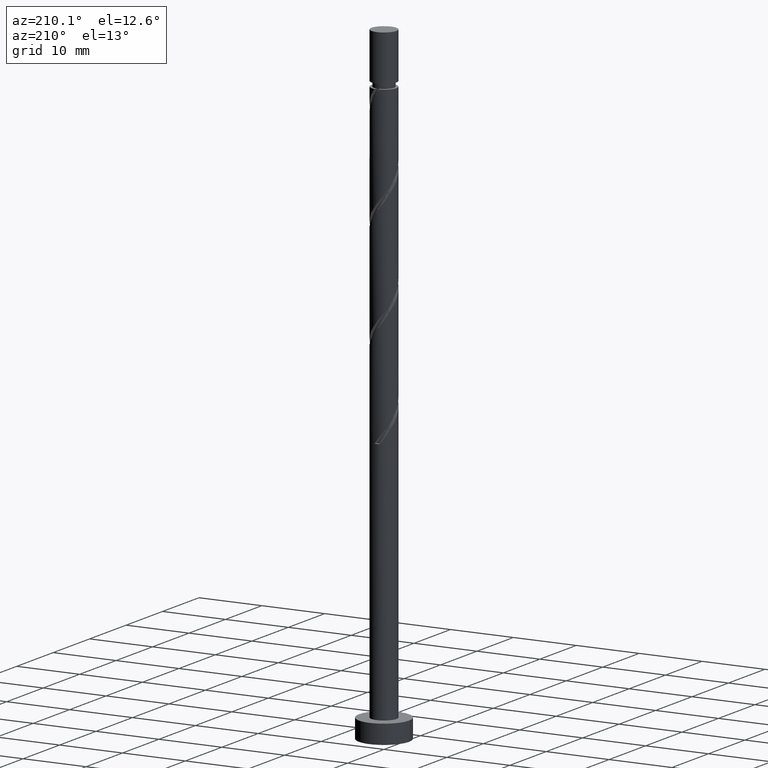
[diagram: clean part render]
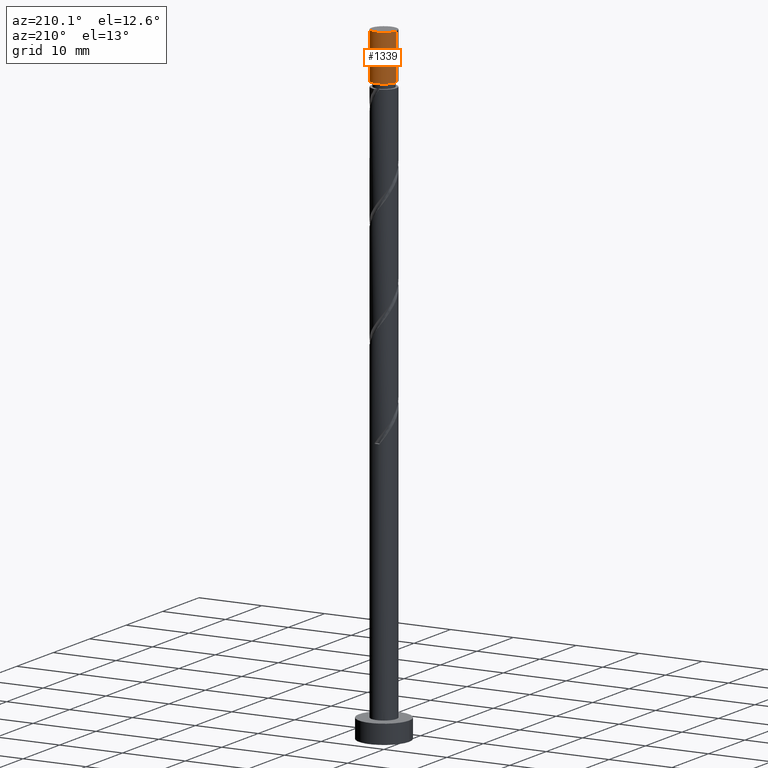
[diagram: same view with one face highlighted and labeled with its STEP entity id]
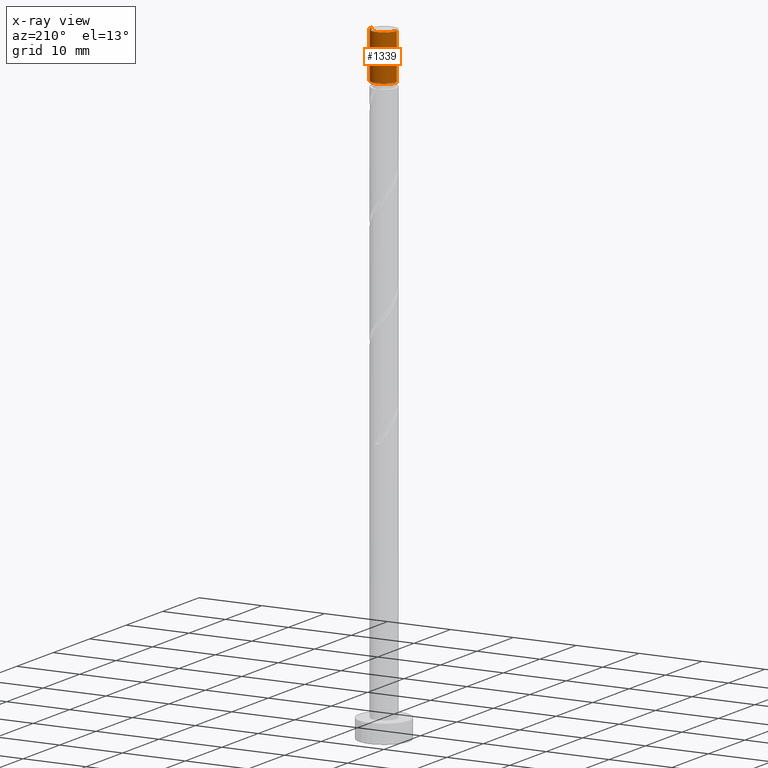
[diagram: x-ray of the same camera — body ghosted, the highlighted face saturated]
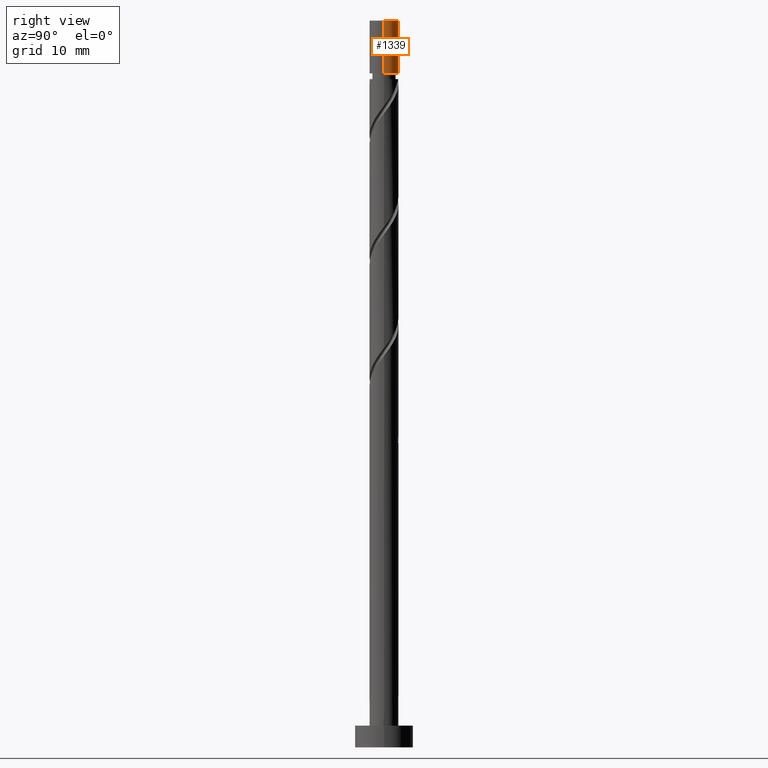
[diagram: same view with one face highlighted and labeled with its STEP entity id]
A machine part, auxiliary view. The second image highlights one B-rep face of the part: STEP entity #1339.
The next image is the same camera in x-ray: the body ghosted, the highlighted face saturated — about 0% of this face is hidden behind the body in this view.
A second angle (right view) of the same face is appended — the face is thin or edge-on in the first view.
In plain terms, the highlighted cylindrical surface (edge-blend (fillet) strip) has radius 2 mm, axis along (-0, -0, -1).
Its self-contained STEP definition (entity closure, byte-faithful):
#34 = DIRECTION ( 'NONE',  ( -0.000000000000000000, -0.000000000000000000, -1.000000000000000000 ) ) ;
#54 = CARTESIAN_POINT ( 'NONE',  ( 0.000000000000000000, 0.000000000000000000, 100.0000000000000000 ) ) ;
#75 = CIRCLE ( 'NONE', #1284, 2.000000000000000888 ) ;
#99 = AXIS2_PLACEMENT_3D ( 'NONE', #54, #597, #1152 ) ;
#100 = DIRECTION ( 'NONE',  ( -1.000000000000000000, 0.000000000000000000, 0.000000000000000000 ) ) ;
#205 = DIRECTION ( 'NONE',  ( -0.000000000000000000, -0.000000000000000000, -1.000000000000000000 ) ) ;
#328 = VERTEX_POINT ( 'NONE', #813 ) ;
#337 = CARTESIAN_POINT ( 'NONE',  ( 0.000000000000000000, 0.000000000000000000, 92.73778771969386980 ) ) ;
#356 = EDGE_CURVE ( 'NONE', #897, #328, #1095, .T. ) ;
#406 = EDGE_CURVE ( 'NONE', #897, #535, #1058, .T. ) ;
#412 = CARTESIAN_POINT ( 'NONE',  ( 2.000000000000000888, 2.449293598294706907E-16, 92.73778771969386980 ) ) ;
#430 = CARTESIAN_POINT ( 'NONE',  ( -2.000000000000000000, 0.000000000000000000, 100.0000000000000000 ) ) ;
#453 = FACE_OUTER_BOUND ( 'NONE', #520, .T. ) ;
#520 = EDGE_LOOP ( 'NONE', ( #568, #1255, #1081, #1129 ) ) ;
#534 = EDGE_CURVE ( 'NONE', #328, #1239, #1432, .T. ) ;
#535 = VERTEX_POINT ( 'NONE', #412 ) ;
#568 = ORIENTED_EDGE ( 'NONE', *, *, #356, .F. ) ;
#597 = DIRECTION ( 'NONE',  ( 0.000000000000000000, 0.000000000000000000, 1.000000000000000000 ) ) ;
#605 = CARTESIAN_POINT ( 'NONE',  ( 2.000000000000000000, 2.449293598294705921E-16, 100.0000000000000000 ) ) ;
#677 = CARTESIAN_POINT ( 'NONE',  ( -2.000000000000000888, 0.000000000000000000, 92.73778771969386980 ) ) ;
#714 = EDGE_CURVE ( 'NONE', #1239, #535, #75, .T. ) ;
#774 = CYLINDRICAL_SURFACE ( 'NONE', #1033, 2.000000000000000000 ) ;
#813 = CARTESIAN_POINT ( 'NONE',  ( -2.000000000000000000, 0.000000000000000000, 100.0000000000000000 ) ) ;
#876 = DIRECTION ( 'NONE',  ( -0.000000000000000000, -0.000000000000000000, -1.000000000000000000 ) ) ;
#897 = VERTEX_POINT ( 'NONE', #605 ) ;
#906 = DIRECTION ( 'NONE',  ( -1.000000000000000000, 0.000000000000000000, 0.000000000000000000 ) ) ;
#1033 = AXIS2_PLACEMENT_3D ( 'NONE', #1112, #205, #906 ) ;
#1058 = LINE ( 'NONE', #1391, #1259 ) ;
#1081 = ORIENTED_EDGE ( 'NONE', *, *, #714, .F. ) ;
#1095 = CIRCLE ( 'NONE', #99, 2.000000000000000000 ) ;
#1112 = CARTESIAN_POINT ( 'NONE',  ( 0.000000000000000000, 0.000000000000000000, 100.0000000000000000 ) ) ;
#1129 = ORIENTED_EDGE ( 'NONE', *, *, #534, .F. ) ;
#1135 = VECTOR ( 'NONE', #876, 1000.000000000000000 ) ;
#1152 = DIRECTION ( 'NONE',  ( 1.000000000000000000, 0.000000000000000000, 0.000000000000000000 ) ) ;
#1239 = VERTEX_POINT ( 'NONE', #677 ) ;
#1255 = ORIENTED_EDGE ( 'NONE', *, *, #406, .T. ) ;
#1259 = VECTOR ( 'NONE', #34, 1000.000000000000000 ) ;
#1284 = AXIS2_PLACEMENT_3D ( 'NONE', #337, #1361, #100 ) ;
#1339 = ADVANCED_FACE ( 'NONE', ( #453 ), #774, .T. ) ;
#1361 = DIRECTION ( 'NONE',  ( -0.000000000000000000, -0.000000000000000000, -1.000000000000000000 ) ) ;
#1391 = CARTESIAN_POINT ( 'NONE',  ( 2.000000000000000000, 2.449293598294705921E-16, 100.0000000000000000 ) ) ;
#1432 = LINE ( 'NONE', #430, #1135 ) ;